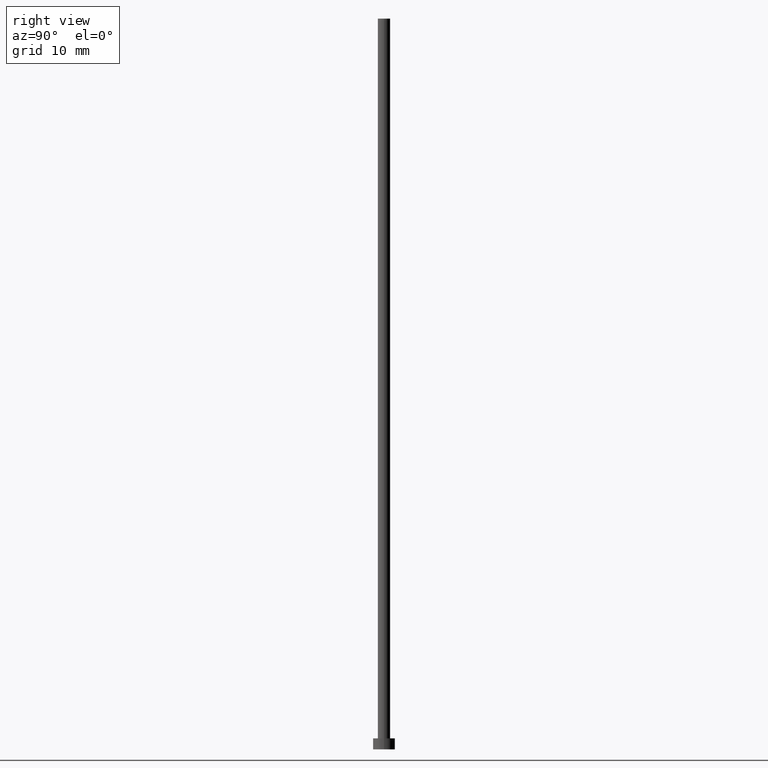
[diagram: clean part render]
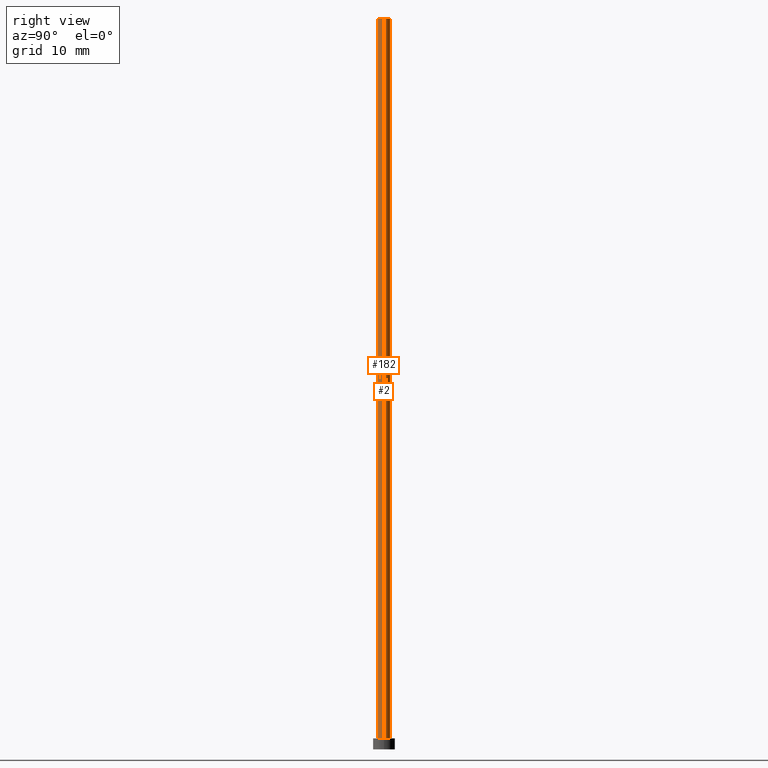
[diagram: same view with one multi-face feature highlighted, each face labeled with its STEP entity id]
A machine part, right view. The highlighted faces form ONE feature: a constant-radius fillet chain: 2 tangent blend faces with common blend radius 0.85 mm. The faces share edges in the B-rep.
Their STEP definitions:
[1] entity #2 (Cylinder):
#1 = CARTESIAN_POINT ( 'NONE',  ( 0.000000000000000000, 0.000000000000000000, 100.0000000000000000 ) ) ;
#2 = ADVANCED_FACE ( 'NONE', ( #21 ), #54, .T. ) ;
#17 = DIRECTION ( 'NONE',  ( 1.000000000000000000, 0.000000000000000000, 0.000000000000000000 ) ) ;
#21 = FACE_OUTER_BOUND ( 'NONE', #112, .T. ) ;
#30 = EDGE_CURVE ( 'NONE', #133, #138, #76, .T. ) ;
#33 = DIRECTION ( 'NONE',  ( 0.000000000000000000, 0.000000000000000000, 1.000000000000000000 ) ) ;
#40 = DIRECTION ( 'NONE',  ( -0.000000000000000000, -0.000000000000000000, -1.000000000000000000 ) ) ;
#53 = DIRECTION ( 'NONE',  ( 0.000000000000000000, 0.000000000000000000, 1.000000000000000000 ) ) ;
#54 = CYLINDRICAL_SURFACE ( 'NONE', #167, 0.8499999999999999778 ) ;
#56 = CARTESIAN_POINT ( 'NONE',  ( 0.8499999999999999778, 1.040949779275250140E-16, 100.0000000000000000 ) ) ;
#58 = EDGE_CURVE ( 'NONE', #125, #133, #174, .T. ) ;
#70 = CARTESIAN_POINT ( 'NONE',  ( 0.8499999999999999778, 1.040949779275250140E-16, 100.0000000000000000 ) ) ;
#76 = CIRCLE ( 'NONE', #225, 0.8499999999999999778 ) ;
#78 = DIRECTION ( 'NONE',  ( -1.000000000000000000, 0.000000000000000000, 0.000000000000000000 ) ) ;
#95 = AXIS2_PLACEMENT_3D ( 'NONE', #246, #33, #17 ) ;
#97 = CARTESIAN_POINT ( 'NONE',  ( -0.8499999999999999778, 0.000000000000000000, 100.0000000000000000 ) ) ;
#103 = DIRECTION ( 'NONE',  ( -0.000000000000000000, -0.000000000000000000, -1.000000000000000000 ) ) ;
#106 = DIRECTION ( 'NONE',  ( 1.000000000000000000, 0.000000000000000000, 0.000000000000000000 ) ) ;
#110 = EDGE_CURVE ( 'NONE', #125, #221, #150, .T. ) ;
#112 = EDGE_LOOP ( 'NONE', ( #126, #204, #128, #176 ) ) ;
#125 = VERTEX_POINT ( 'NONE', #70 ) ;
#126 = ORIENTED_EDGE ( 'NONE', *, *, #110, .F. ) ;
#128 = ORIENTED_EDGE ( 'NONE', *, *, #30, .T. ) ;
#133 = VERTEX_POINT ( 'NONE', #229 ) ;
#138 = VERTEX_POINT ( 'NONE', #247 ) ;
#142 = VECTOR ( 'NONE', #103, 1000.000000000000000 ) ;
#150 = CIRCLE ( 'NONE', #95, 0.8499999999999999778 ) ;
#167 = AXIS2_PLACEMENT_3D ( 'NONE', #1, #218, #78 ) ;
#174 = LINE ( 'NONE', #56, #142 ) ;
#175 = EDGE_CURVE ( 'NONE', #221, #138, #198, .T. ) ;
#176 = ORIENTED_EDGE ( 'NONE', *, *, #175, .F. ) ;
#198 = LINE ( 'NONE', #97, #249 ) ;
#204 = ORIENTED_EDGE ( 'NONE', *, *, #58, .T. ) ;
#216 = CARTESIAN_POINT ( 'NONE',  ( -0.8499999999999999778, 0.000000000000000000, 100.0000000000000000 ) ) ;
#218 = DIRECTION ( 'NONE',  ( -0.000000000000000000, -0.000000000000000000, -1.000000000000000000 ) ) ;
#221 = VERTEX_POINT ( 'NONE', #216 ) ;
#225 = AXIS2_PLACEMENT_3D ( 'NONE', #240, #53, #106 ) ;
#229 = CARTESIAN_POINT ( 'NONE',  ( 0.8499999999999999778, 1.040949779275250140E-16, 1.500000000000000000 ) ) ;
#240 = CARTESIAN_POINT ( 'NONE',  ( 0.000000000000000000, 0.000000000000000000, 1.500000000000000000 ) ) ;
#246 = CARTESIAN_POINT ( 'NONE',  ( 0.000000000000000000, 0.000000000000000000, 100.0000000000000000 ) ) ;
#247 = CARTESIAN_POINT ( 'NONE',  ( -0.8499999999999999778, 0.000000000000000000, 1.500000000000000000 ) ) ;
#249 = VECTOR ( 'NONE', #40, 1000.000000000000000 ) ;
[2] entity #182 (Cylinder):
#13 = CARTESIAN_POINT ( 'NONE',  ( 0.000000000000000000, 0.000000000000000000, 100.0000000000000000 ) ) ;
#20 = DIRECTION ( 'NONE',  ( 1.000000000000000000, 0.000000000000000000, 0.000000000000000000 ) ) ;
#37 = DIRECTION ( 'NONE',  ( -1.000000000000000000, 0.000000000000000000, 0.000000000000000000 ) ) ;
#40 = DIRECTION ( 'NONE',  ( -0.000000000000000000, -0.000000000000000000, -1.000000000000000000 ) ) ;
#55 = ORIENTED_EDGE ( 'NONE', *, *, #58, .F. ) ;
#56 = CARTESIAN_POINT ( 'NONE',  ( 0.8499999999999999778, 1.040949779275250140E-16, 100.0000000000000000 ) ) ;
#58 = EDGE_CURVE ( 'NONE', #125, #133, #174, .T. ) ;
#60 = AXIS2_PLACEMENT_3D ( 'NONE', #237, #235, #37 ) ;
#69 = EDGE_LOOP ( 'NONE', ( #55, #255, #185, #74 ) ) ;
#70 = CARTESIAN_POINT ( 'NONE',  ( 0.8499999999999999778, 1.040949779275250140E-16, 100.0000000000000000 ) ) ;
#74 = ORIENTED_EDGE ( 'NONE', *, *, #141, .T. ) ;
#79 = FACE_OUTER_BOUND ( 'NONE', #69, .T. ) ;
#92 = DIRECTION ( 'NONE',  ( 0.000000000000000000, 0.000000000000000000, 1.000000000000000000 ) ) ;
#97 = CARTESIAN_POINT ( 'NONE',  ( -0.8499999999999999778, 0.000000000000000000, 100.0000000000000000 ) ) ;
#103 = DIRECTION ( 'NONE',  ( -0.000000000000000000, -0.000000000000000000, -1.000000000000000000 ) ) ;
#105 = CARTESIAN_POINT ( 'NONE',  ( 0.000000000000000000, 0.000000000000000000, 1.500000000000000000 ) ) ;
#125 = VERTEX_POINT ( 'NONE', #70 ) ;
#133 = VERTEX_POINT ( 'NONE', #229 ) ;
#134 = EDGE_CURVE ( 'NONE', #221, #125, #192, .T. ) ;
#137 = CYLINDRICAL_SURFACE ( 'NONE', #60, 0.8499999999999999778 ) ;
#138 = VERTEX_POINT ( 'NONE', #247 ) ;
#141 = EDGE_CURVE ( 'NONE', #138, #133, #228, .T. ) ;
#142 = VECTOR ( 'NONE', #103, 1000.000000000000000 ) ;
#143 = AXIS2_PLACEMENT_3D ( 'NONE', #105, #222, #20 ) ;
#165 = DIRECTION ( 'NONE',  ( 1.000000000000000000, 0.000000000000000000, 0.000000000000000000 ) ) ;
#174 = LINE ( 'NONE', #56, #142 ) ;
#175 = EDGE_CURVE ( 'NONE', #221, #138, #198, .T. ) ;
#182 = ADVANCED_FACE ( 'NONE', ( #79 ), #137, .T. ) ;
#185 = ORIENTED_EDGE ( 'NONE', *, *, #175, .T. ) ;
#191 = AXIS2_PLACEMENT_3D ( 'NONE', #13, #92, #165 ) ;
#192 = CIRCLE ( 'NONE', #191, 0.8499999999999999778 ) ;
#198 = LINE ( 'NONE', #97, #249 ) ;
#216 = CARTESIAN_POINT ( 'NONE',  ( -0.8499999999999999778, 0.000000000000000000, 100.0000000000000000 ) ) ;
#221 = VERTEX_POINT ( 'NONE', #216 ) ;
#222 = DIRECTION ( 'NONE',  ( 0.000000000000000000, 0.000000000000000000, 1.000000000000000000 ) ) ;
#228 = CIRCLE ( 'NONE', #143, 0.8499999999999999778 ) ;
#229 = CARTESIAN_POINT ( 'NONE',  ( 0.8499999999999999778, 1.040949779275250140E-16, 1.500000000000000000 ) ) ;
#235 = DIRECTION ( 'NONE',  ( -0.000000000000000000, -0.000000000000000000, -1.000000000000000000 ) ) ;
#237 = CARTESIAN_POINT ( 'NONE',  ( 0.000000000000000000, 0.000000000000000000, 100.0000000000000000 ) ) ;
#247 = CARTESIAN_POINT ( 'NONE',  ( -0.8499999999999999778, 0.000000000000000000, 1.500000000000000000 ) ) ;
#249 = VECTOR ( 'NONE', #40, 1000.000000000000000 ) ;
#255 = ORIENTED_EDGE ( 'NONE', *, *, #134, .F. ) ;